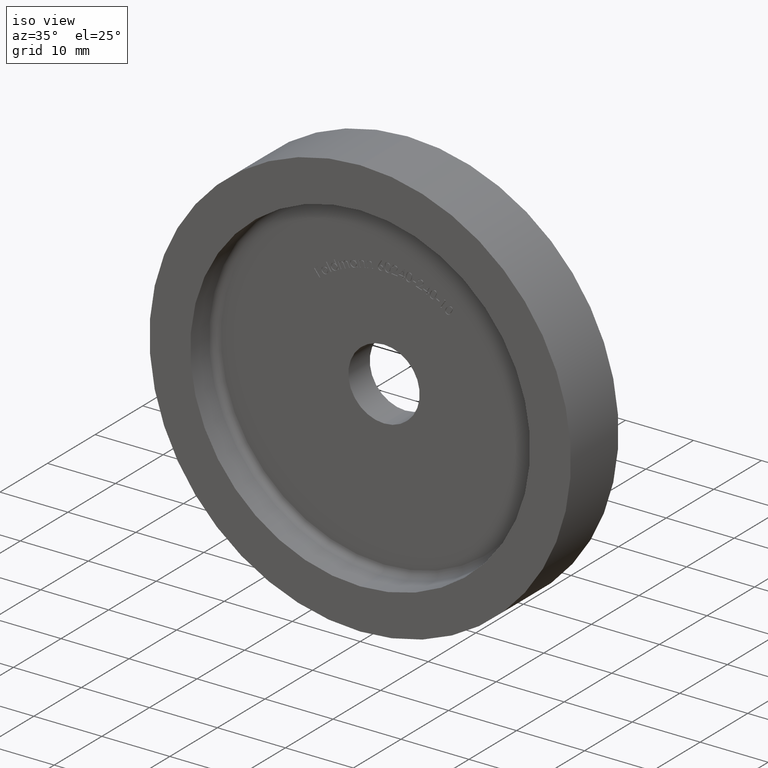
[diagram: clean part render]
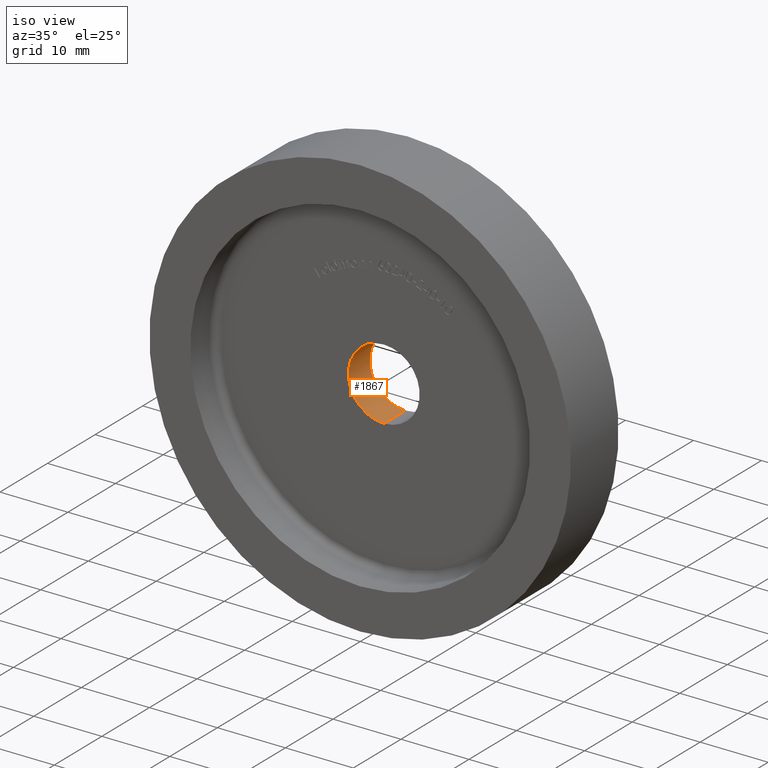
[diagram: same view with one face highlighted and labeled with its STEP entity id]
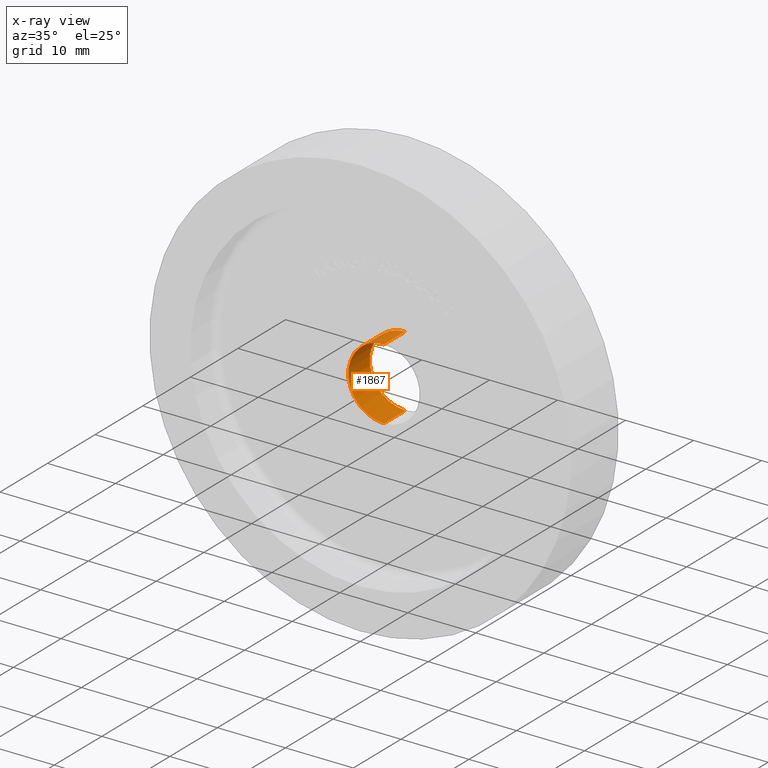
[diagram: x-ray of the same camera — body ghosted, the highlighted face saturated]
A machine part, iso view. The second image highlights one B-rep face of the part: STEP entity #1867.
The next image is the same camera in x-ray: the body ghosted, the highlighted face saturated — about 0% of this face is hidden behind the body in this view.
In plain terms, the highlighted cylindrical surface (partial cylindrical patch) has radius 5.25 mm, axis along (-0, 1, -0).
Its self-contained STEP definition (entity closure, byte-faithful):
#74 = CIRCLE ( 'NONE', #6240, 5.250000000000004441 ) ;
#324 = EDGE_CURVE ( 'NONE', #7487, #2324, #7687, .T. ) ;
#1432 = CARTESIAN_POINT ( 'NONE',  ( 0.000000000000000000, 9.499999999999996447, 5.250000000000000888 ) ) ;
#1867 = ADVANCED_FACE ( 'NONE', ( #12517 ), #5593, .F. ) ;
#2324 = VERTEX_POINT ( 'NONE', #3163 ) ;
#2420 = ORIENTED_EDGE ( 'NONE', *, *, #3568, .T. ) ;
#2711 = DIRECTION ( 'NONE',  ( 0.000000000000000000, 0.000000000000000000, 1.000000000000000000 ) ) ;
#2981 = ORIENTED_EDGE ( 'NONE', *, *, #5409, .F. ) ;
#3163 = CARTESIAN_POINT ( 'NONE',  ( 6.735557395310443009E-16, 9.499999999999996447, -5.250000000000000888 ) ) ;
#3568 = EDGE_CURVE ( 'NONE', #2324, #6366, #13002, .T. ) ;
#4170 = ORIENTED_EDGE ( 'NONE', *, *, #8486, .F. ) ;
#4596 = CARTESIAN_POINT ( 'NONE',  ( 6.429395695523610069E-16, 4.999999999999996447, -5.250000000000004441 ) ) ;
#5104 = AXIS2_PLACEMENT_3D ( 'NONE', #10843, #7440, #9777 ) ;
#5409 = EDGE_CURVE ( 'NONE', #7487, #14138, #74, .T. ) ;
#5593 = CYLINDRICAL_SURFACE ( 'NONE', #10826, 5.250000000000004441 ) ;
#5733 = DIRECTION ( 'NONE',  ( -0.000000000000000000, 1.000000000000000000, -0.000000000000000000 ) ) ;
#5927 = DIRECTION ( 'NONE',  ( 0.000000000000000000, 0.000000000000000000, 1.000000000000000000 ) ) ;
#6240 = AXIS2_PLACEMENT_3D ( 'NONE', #11469, #9256, #5927 ) ;
#6366 = VERTEX_POINT ( 'NONE', #1432 ) ;
#7440 = DIRECTION ( 'NONE',  ( -0.000000000000000000, 1.000000000000000000, -0.000000000000000000 ) ) ;
#7487 = VERTEX_POINT ( 'NONE', #4596 ) ;
#7687 = LINE ( 'NONE', #12152, #12513 ) ;
#8115 = EDGE_LOOP ( 'NONE', ( #2981, #14113, #2420, #4170 ) ) ;
#8125 = CARTESIAN_POINT ( 'NONE',  ( 0.000000000000000000, 4.999999999999996447, 5.250000000000004441 ) ) ;
#8486 = EDGE_CURVE ( 'NONE', #14138, #6366, #13461, .T. ) ;
#9256 = DIRECTION ( 'NONE',  ( -0.000000000000000000, 1.000000000000000000, -0.000000000000000000 ) ) ;
#9335 = DIRECTION ( 'NONE',  ( -0.000000000000000000, 1.000000000000000000, -0.000000000000000000 ) ) ;
#9777 = DIRECTION ( 'NONE',  ( 0.000000000000000000, 0.000000000000000000, 1.000000000000000000 ) ) ;
#10826 = AXIS2_PLACEMENT_3D ( 'NONE', #13724, #9335, #2711 ) ;
#10843 = CARTESIAN_POINT ( 'NONE',  ( 0.000000000000000000, 9.499999999999996447, 0.000000000000000000 ) ) ;
#11469 = CARTESIAN_POINT ( 'NONE',  ( 0.000000000000000000, 4.999999999999996447, 0.000000000000000000 ) ) ;
#12152 = CARTESIAN_POINT ( 'NONE',  ( 6.429395695523610069E-16, 9.999999999999996447, -5.250000000000004441 ) ) ;
#12513 = VECTOR ( 'NONE', #14328, 1000.000000000000000 ) ;
#12517 = FACE_OUTER_BOUND ( 'NONE', #8115, .T. ) ;
#13002 = CIRCLE ( 'NONE', #5104, 5.250000000000000888 ) ;
#13398 = CARTESIAN_POINT ( 'NONE',  ( 0.000000000000000000, 9.999999999999996447, 5.250000000000004441 ) ) ;
#13461 = LINE ( 'NONE', #13398, #14155 ) ;
#13724 = CARTESIAN_POINT ( 'NONE',  ( 0.000000000000000000, 9.999999999999996447, 0.000000000000000000 ) ) ;
#14113 = ORIENTED_EDGE ( 'NONE', *, *, #324, .T. ) ;
#14138 = VERTEX_POINT ( 'NONE', #8125 ) ;
#14155 = VECTOR ( 'NONE', #5733, 1000.000000000000000 ) ;
#14328 = DIRECTION ( 'NONE',  ( -0.000000000000000000, 1.000000000000000000, -0.000000000000000000 ) ) ;